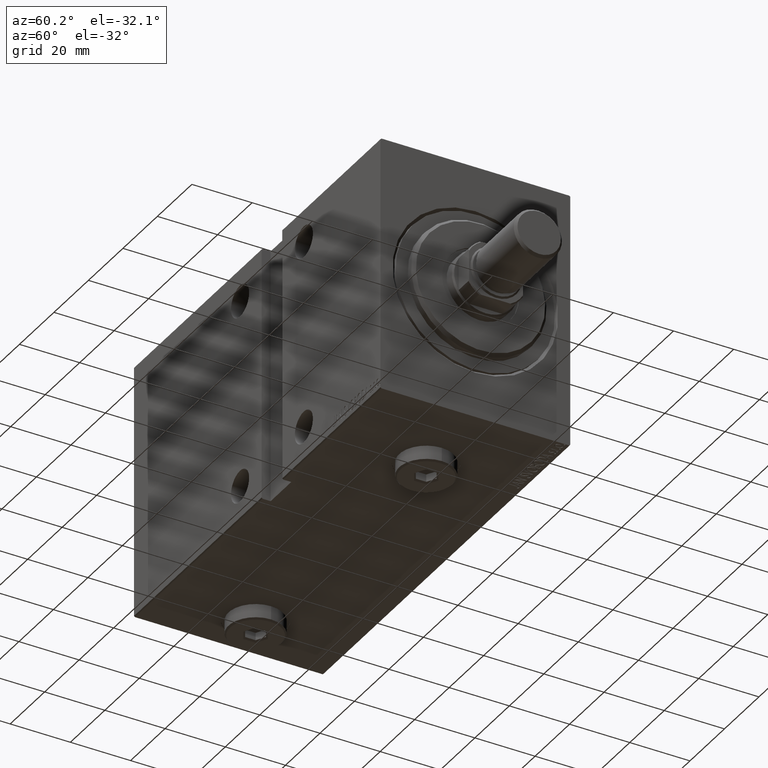
[diagram: clean part render]
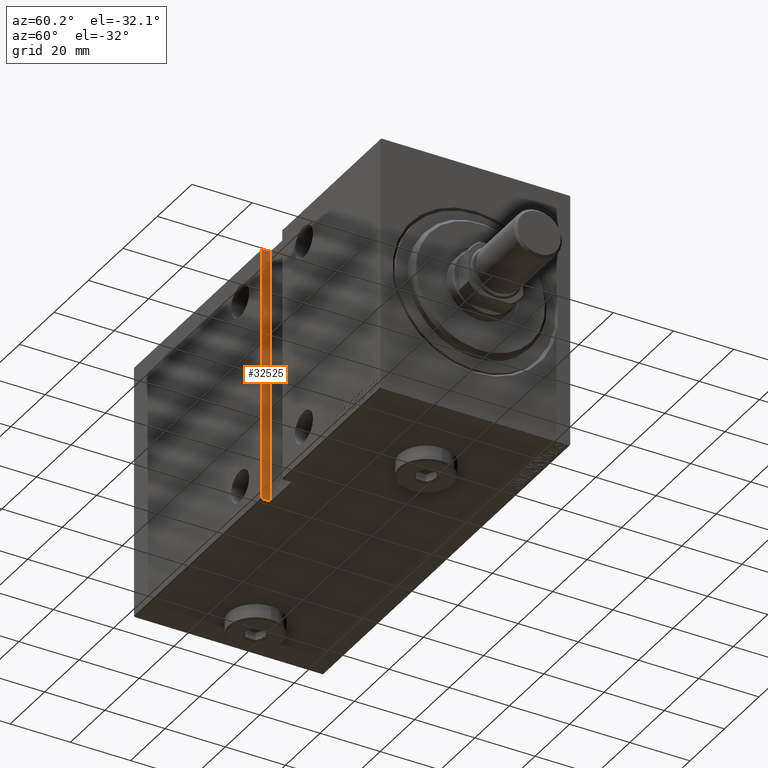
[diagram: same view with one face highlighted and labeled with its STEP entity id]
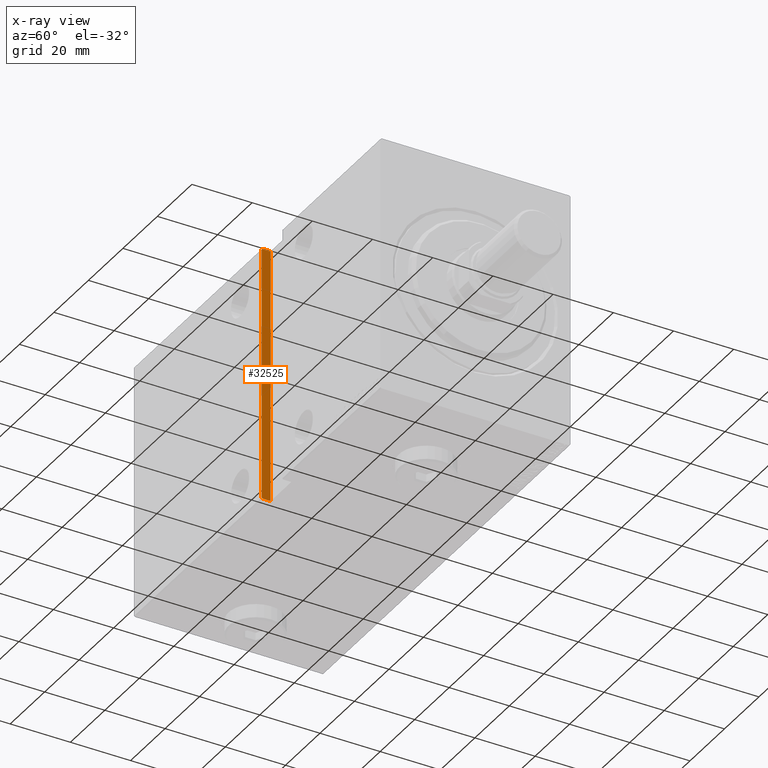
[diagram: x-ray of the same camera — body ghosted, the highlighted face saturated]
A machine part, auxiliary view. The second image highlights one B-rep face of the part: STEP entity #32525.
The next image is the same camera in x-ray: the body ghosted, the highlighted face saturated — about 0% of this face is hidden behind the body in this view.
In plain terms, the highlighted planar face has unit normal (-1, -0, -0).
Its self-contained STEP definition (entity closure, byte-faithful):
#46 = ORIENTED_EDGE ( 'NONE', *, *, #6213, .T. ) ;
#2111 = CARTESIAN_POINT ( 'NONE',  ( 69.00000000000001421, 31.20000000000003482, 42.50000000000000711 ) ) ;
#3020 = LINE ( 'NONE', #43814, #27795 ) ;
#4160 = VERTEX_POINT ( 'NONE', #2111 ) ;
#4376 = DIRECTION ( 'NONE',  ( -1.632680918566406300E-16, 0.000000000000000000, -1.000000000000000000 ) ) ;
#4422 = DIRECTION ( 'NONE',  ( -0.000000000000000000, 1.000000000000000000, -0.000000000000000000 ) ) ;
#5372 = ORIENTED_EDGE ( 'NONE', *, *, #42965, .T. ) ;
#5793 = LINE ( 'NONE', #39849, #26163 ) ;
#6213 = EDGE_CURVE ( 'NONE', #17548, #6961, #5793, .T. ) ;
#6450 = DIRECTION ( 'NONE',  ( -1.154479749032187253E-16, -0.7071067811865474617, -0.7071067811865474617 ) ) ;
#6538 = AXIS2_PLACEMENT_3D ( 'NONE', #34680, #27527, #31099 ) ;
#6961 = VERTEX_POINT ( 'NONE', #30006 ) ;
#7284 = ORIENTED_EDGE ( 'NONE', *, *, #28106, .F. ) ;
#7793 = EDGE_CURVE ( 'NONE', #19765, #4160, #26497, .T. ) ;
#8312 = EDGE_CURVE ( 'NONE', #4160, #41312, #29933, .T. ) ;
#8872 = VECTOR ( 'NONE', #43380, 1000.000000000000114 ) ;
#10655 = LINE ( 'NONE', #41797, #40046 ) ;
#11587 = CARTESIAN_POINT ( 'NONE',  ( 69.00000000000000000, 28.50000000000000000, -42.50000000000000711 ) ) ;
#11747 = VECTOR ( 'NONE', #19757, 1000.000000000000000 ) ;
#13107 = DIRECTION ( 'NONE',  ( -1.632680918566406300E-16, 0.000000000000000000, -1.000000000000000000 ) ) ;
#15410 = LINE ( 'NONE', #11587, #40893 ) ;
#17548 = VERTEX_POINT ( 'NONE', #32523 ) ;
#17957 = CARTESIAN_POINT ( 'NONE',  ( 69.00000000000001421, 31.50000000000000000, 42.20000000000004547 ) ) ;
#19757 = DIRECTION ( 'NONE',  ( -0.000000000000000000, 1.000000000000000000, -0.000000000000000000 ) ) ;
#19765 = VERTEX_POINT ( 'NONE', #43569 ) ;
#20569 = FACE_OUTER_BOUND ( 'NONE', #35846, .T. ) ;
#22383 = VERTEX_POINT ( 'NONE', #23323 ) ;
#23323 = CARTESIAN_POINT ( 'NONE',  ( 69.00000000000001421, 28.50000000000000355, -42.50000000000000711 ) ) ;
#26163 = VECTOR ( 'NONE', #6450, 1000.000000000000114 ) ;
#26497 = LINE ( 'NONE', #36769, #11747 ) ;
#27527 = DIRECTION ( 'NONE',  ( 1.000000000000000000, 0.000000000000000000, -1.632680918566406300E-16 ) ) ;
#27795 = VECTOR ( 'NONE', #13107, 1000.000000000000000 ) ;
#28106 = EDGE_CURVE ( 'NONE', #19765, #22383, #10655, .T. ) ;
#29933 = LINE ( 'NONE', #39784, #8872 ) ;
#30006 = CARTESIAN_POINT ( 'NONE',  ( 69.00000000000000000, 31.20000000000004192, -42.50000000000000711 ) ) ;
#31099 = DIRECTION ( 'NONE',  ( -1.632680918566406300E-16, 0.000000000000000000, -1.000000000000000000 ) ) ;
#31542 = PLANE ( 'NONE',  #6538 ) ;
#32523 = CARTESIAN_POINT ( 'NONE',  ( 69.00000000000000000, 31.50000000000000000, -42.20000000000004547 ) ) ;
#32525 = ADVANCED_FACE ( 'NONE', ( #20569 ), #31542, .F. ) ;
#32645 = EDGE_CURVE ( 'NONE', #22383, #6961, #15410, .T. ) ;
#34680 = CARTESIAN_POINT ( 'NONE',  ( 69.00000000000001421, 28.50000000000000000, 42.50000000000000711 ) ) ;
#35846 = EDGE_LOOP ( 'NONE', ( #5372, #46, #42351, #7284, #40766, #42601 ) ) ;
#36769 = CARTESIAN_POINT ( 'NONE',  ( 69.00000000000001421, 28.50000000000000000, 42.50000000000000711 ) ) ;
#39784 = CARTESIAN_POINT ( 'NONE',  ( 69.00000000000001421, 31.20000000000002771, 42.50000000000001421 ) ) ;
#39849 = CARTESIAN_POINT ( 'NONE',  ( 69.00000000000000000, 31.50000000000001421, -42.20000000000003837 ) ) ;
#40046 = VECTOR ( 'NONE', #4376, 1000.000000000000000 ) ;
#40766 = ORIENTED_EDGE ( 'NONE', *, *, #7793, .T. ) ;
#40893 = VECTOR ( 'NONE', #4422, 1000.000000000000000 ) ;
#41312 = VERTEX_POINT ( 'NONE', #17957 ) ;
#41797 = CARTESIAN_POINT ( 'NONE',  ( 69.00000000000001421, 28.50000000000000000, 42.50000000000000711 ) ) ;
#42351 = ORIENTED_EDGE ( 'NONE', *, *, #32645, .F. ) ;
#42601 = ORIENTED_EDGE ( 'NONE', *, *, #8312, .T. ) ;
#42965 = EDGE_CURVE ( 'NONE', #41312, #17548, #3020, .T. ) ;
#43380 = DIRECTION ( 'NONE',  ( -1.154479749032187253E-16, 0.7071067811865474617, -0.7071067811865474617 ) ) ;
#43569 = CARTESIAN_POINT ( 'NONE',  ( 69.00000000000001421, 28.50000000000000000, 42.50000000000000711 ) ) ;
#43814 = CARTESIAN_POINT ( 'NONE',  ( 69.00000000000001421, 31.50000000000000000, 42.50000000000000711 ) ) ;